MODEL slx_d8383f25a9a3
KIND model
CONFIG AbsTol = auto
CONFIG EnableMultiTasking = off
CONFIG FixedStep = auto
CONFIG InitFcn = OldInitializeParameters
CONFIG MaxStep = Simulation.TS_MAX
CONFIG MinStep = auto
CONFIG RelTol = 1e-6
CONFIG SampleTimeConstraint = Unconstrained
CONFIG SolverName = ode45
CONFIG StartTime = 0.0
CONFIG StopFcn = %sim_complete_dlg
CONFIG StopTime = 100
BLOCK [Scope] Angular position, velocity, & acceleration (inertial)
  Floating = off
  NumInputPorts = 3
  Ports = [3]
  ScopeSpecificationString = Simulink.scopes.TimeScopeBlockCfg('CurrentConfiguration', extmgr.ConfigurationSet(extmgr.Configuration('Core','General UI',true),extmgr.Configuration('Core','Source UI',true),extmgr.Configuration('Sources','WiredSimulink',true,'DataLoggingSaveFormat','Array','DataLoggingDecimation','1','DataLoggingDecimateData',true,'DataLoggingVariableName','ScopeData3'),extmgr.Configuration('Visuals','Time Domai...<+3062ch>
BLOCK [Scope] Angular velocity & acceleration (body)
  Floating = off
  NumInputPorts = 2
  Ports = [2]
  ScopeSpecificationString = Simulink.scopes.TimeScopeBlockCfg('CurrentConfiguration', extmgr.ConfigurationSet(extmgr.Configuration('Core','General UI',true),extmgr.Configuration('Core','Source UI',true),extmgr.Configuration('Sources','WiredSimulink',true,'DataLoggingSaveFormat','Array','DataLoggingDecimation','1','DataLoggingDecimateData',true),extmgr.Configuration('Visuals','Time Domain',true,'SerializedDisplays',{struct('M...<+2265ch>
BLOCK [Demux] Demux1
  Outputs = 3
  Ports = [1, 3]
BLOCK [Demux] Demux10
  Outputs = 3
  Ports = [1, 3]
BLOCK [Demux] Demux11
  Outputs = 3
  Ports = [1, 3]
BLOCK [Demux] Demux12
  Outputs = 3
  Ports = [1, 3]
BLOCK [Demux] Demux13
  Ports = [1, 4]
BLOCK [Demux] Demux2
  Outputs = 3
  Ports = [1, 3]
BLOCK [Demux] Demux3
  Outputs = 3
  Ports = [1, 3]
BLOCK [Demux] Demux4
  Outputs = 3
  Ports = [1, 3]
BLOCK [Demux] Demux5
  Outputs = 3
  Ports = [1, 3]
BLOCK [Demux] Demux6
  Outputs = 3
  Ports = [1, 3]
BLOCK [Demux] Demux7
  Outputs = 3
  Ports = [1, 3]
BLOCK [Demux] Demux8
  Outputs = 3
  Ports = [1, 3]
BLOCK [Demux] Demux9
  Outputs = 3
  Ports = [1, 3]
BLOCK [From] From
  GotoTag = V_B
BLOCK [FromWorkspace] From Workspace
  VariableName = windData
BLOCK [FromWorkspace] From Workspace1
  VariableName = Input.PWM_IN
BLOCK [From] From1
  GotoTag = V_B_d1
BLOCK [From] From10
  GotoTag = V_B
BLOCK [From] From11
  GotoTag = V_B_d1
BLOCK [From] From12
  GotoTag = nu_B
BLOCK [From] From13
  GotoTag = nu_B_d1
BLOCK [From] From14
  GotoTag = xi
BLOCK [From] From15
  GotoTag = xi_d1
BLOCK [From] From16
  GotoTag = xi_d2
BLOCK [From] From17
  GotoTag = eta
BLOCK [From] From18
  GotoTag = eta_d1
BLOCK [From] From19
  GotoTag = eta_d2
BLOCK [From] From2
  GotoTag = nu_B
BLOCK [From] From27
  GotoTag = pwm
BLOCK [From] From29
  GotoTag = w
BLOCK [From] From3
  GotoTag = nu_B_d1
BLOCK [From] From30
  GotoTag = T_B
BLOCK [From] From31
  GotoTag = tau_B
BLOCK [From] From32
  GotoTag = T_B
BLOCK [From] From33
  GotoTag = tau_B
BLOCK [From] From4
  GotoTag = xi
BLOCK [From] From5
  GotoTag = xi_d1
BLOCK [From] From6
  GotoTag = xi_d2
BLOCK [From] From7
  GotoTag = eta
BLOCK [From] From8
  GotoTag = eta_d1
BLOCK [From] From9
  GotoTag = eta_d2
BLOCK [Gain] Gain
  Gain = 0
BLOCK [Goto] Goto
  GotoTag = V_B
BLOCK [Goto] Goto1
  GotoTag = V_B_d1
BLOCK [Goto] Goto10
  GotoTag = w
BLOCK [Goto] Goto11
  GotoTag = pwm
BLOCK [Goto] Goto12
  GotoTag = T_B
BLOCK [Goto] Goto13
  GotoTag = tau_B
BLOCK [Goto] Goto2
  GotoTag = nu_B
BLOCK [Goto] Goto3
  GotoTag = nu_B_d1
BLOCK [Goto] Goto4
  GotoTag = xi
BLOCK [Goto] Goto5
  GotoTag = xi_d1
BLOCK [Goto] Goto6
  GotoTag = xi_d2
BLOCK [Goto] Goto7
  GotoTag = eta
BLOCK [Goto] Goto8
  GotoTag = eta_d1
BLOCK [Goto] Goto9
  GotoTag = eta_d2
BLOCK [SubSystem] Logging buffer
  Ports = [1, 1]
  RequestExecContextInheritance = off
BLOCK [Inport] Logging buffer/pwmIn
BLOCK [Outport] Logging buffer/pwmOut
  VectorParamsAs1DForOutWhenUnconnected = off
BLOCK [SubSystem] Motor Dynamics
  Ports = [1, 3]
  RequestExecContextInheritance = off
BLOCK [Integrator] Motor Dynamics/Integrator
  InitialCondition = init_M
  Ports = [1, 1]
BLOCK [SubSystem] Motor Dynamics/MATLAB Function
  ErrorFcn = Stateflow.Translate.translate
  PermitHierarchicalResolution = ExplicitOnly
  Ports = [2, 2]
  RequestExecContextInheritance = off
  SFBlockType = MATLAB Function
  TreatAsAtomicUnit = on
BLOCK [Demux] Motor Dynamics/MATLAB Function/ Demux 
  Outputs = 1
  Ports = [1, 1]
BLOCK [S-Function] Motor Dynamics/MATLAB Function/ SFunction 
  EnableBusSupport = on
  FunctionName = sf_sfun
  Parameters = I_R,b,beta,k,l
  PortCounts = [2 3]
  Ports = [2, 3]
  SFcnIsStateOwnerBlock = off
  SFunctionDeploymentMode = off
  Tag = Stateflow S-Function 18
BLOCK [Terminator] Motor Dynamics/MATLAB Function/ Terminator 
BLOCK [Outport] Motor Dynamics/MATLAB Function/T_B
  VectorParamsAs1DForOutWhenUnconnected = off
BLOCK [Outport] Motor Dynamics/MATLAB Function/tau_B
  Port = 2
  VectorParamsAs1DForOutWhenUnconnected = off
BLOCK [Inport] Motor Dynamics/MATLAB Function/w
BLOCK [Inport] Motor Dynamics/MATLAB Function/w_d
  Port = 2
BLOCK [SubSystem] Motor Dynamics/MATLAB Function1
  ErrorFcn = Stateflow.Translate.translate
  PermitHierarchicalResolution = ExplicitOnly
  Ports = [2, 1]
  RequestExecContextInheritance = off
  SFBlockType = MATLAB Function
  TreatAsAtomicUnit = on
BLOCK [Demux] Motor Dynamics/MATLAB Function1/ Demux 
  Outputs = 1
  Ports = [1, 1]
BLOCK [S-Function] Motor Dynamics/MATLAB Function1/ SFunction 
  EnableBusSupport = on
  FunctionName = sf_sfun
  Parameters = I_R,K_T,K_e,R,b,batt_volt_nom
  PortCounts = [2 2]
  Ports = [2, 2]
  SFcnIsStateOwnerBlock = off
  SFunctionDeploymentMode = off
  Tag = Stateflow S-Function 19
BLOCK [Terminator] Motor Dynamics/MATLAB Function1/ Terminator 
BLOCK [Inport] Motor Dynamics/MATLAB Function1/throttle_pwm
BLOCK [Inport] Motor Dynamics/MATLAB Function1/w
  Port = 2
BLOCK [Outport] Motor Dynamics/MATLAB Function1/w_d
  VectorParamsAs1DForOutWhenUnconnected = off
BLOCK [Outport] Motor Dynamics/T_B
  VectorParamsAs1DForOutWhenUnconnected = off
BLOCK [Inport] Motor Dynamics/pwm
BLOCK [Outport] Motor Dynamics/tau_B
  Port = 2
  VectorParamsAs1DForOutWhenUnconnected = off
BLOCK [Outport] Motor Dynamics/w
  Port = 3
  VectorParamsAs1DForOutWhenUnconnected = off
BLOCK [Scope] Motor PWM outputs
  Floating = off
  NumInputPorts = 4
  Ports = [4]
  ScopeSpecificationString = Simulink.scopes.TimeScopeBlockCfg('CurrentConfiguration', extmgr.ConfigurationSet(extmgr.Configuration('Core','General UI',true),extmgr.Configuration('Core','Source UI',true),extmgr.Configuration('Sources','WiredSimulink',true,'DataLoggingSaveFormat','Array','DataLoggingDecimation','1','DataLoggingDecimateData',true,'DataLoggingVariableName','ScopeData3'),extmgr.Configuration('Visuals','Time Domai...<+3642ch>
BLOCK [Scope] Motor thrust and resulting torque
  Floating = off
  NumInputPorts = 2
  Ports = [2]
  ScopeSpecificationString = Simulink.scopes.TimeScopeBlockCfg('CurrentConfiguration', extmgr.ConfigurationSet(extmgr.Configuration('Core','General UI',true),extmgr.Configuration('Core','Source UI',true),extmgr.Configuration('Sources','WiredSimulink',true,'DataLoggingSaveFormat','Array','DataLoggingDecimation','1','DataLoggingDecimateData',true),extmgr.Configuration('Visuals','Time Domain',true,'SerializedDisplays',{struct('M...<+2249ch>
BLOCK [Mux] Mux
  DisplayOption = bar
  Inputs = 2
  Ports = [2, 1]
BLOCK [Mux] Mux1
  DisplayOption = bar
  Inputs = 2
  Ports = [2, 1]
BLOCK [Mux] Mux10
  DisplayOption = bar
  Inputs = 3
  Ports = [3, 1]
BLOCK [Mux] Mux11
  DisplayOption = bar
  Inputs = 3
  Ports = [3, 1]
BLOCK [Mux] Mux12
  DisplayOption = bar
  Inputs = 3
  Ports = [3, 1]
BLOCK [Mux] Mux13
  DisplayOption = bar
  Inputs = 3
  Ports = [3, 1]
BLOCK [Mux] Mux14
  DisplayOption = bar
  Inputs = 3
  Ports = [3, 1]
BLOCK [Mux] Mux15
  DisplayOption = bar
  Inputs = 3
  Ports = [3, 1]
BLOCK [Mux] Mux2
  DisplayOption = bar
  Inputs = 3
  Ports = [3, 1]
BLOCK [Mux] Mux3
  DisplayOption = bar
  Inputs = 3
  Ports = [3, 1]
BLOCK [Mux] Mux4
  DisplayOption = bar
  Inputs = 3
  Ports = [3, 1]
BLOCK [Mux] Mux5
  DisplayOption = bar
  Inputs = 3
  Ports = [3, 1]
BLOCK [Mux] Mux6
  DisplayOption = bar
  Inputs = 3
  Ports = [3, 1]
BLOCK [Mux] Mux7
  DisplayOption = bar
  Inputs = 3
  Ports = [3, 1]
BLOCK [Mux] Mux8
  DisplayOption = bar
  Inputs = 3
  Ports = [3, 1]
BLOCK [Mux] Mux9
  DisplayOption = bar
  Inputs = 3
  Ports = [3, 1]
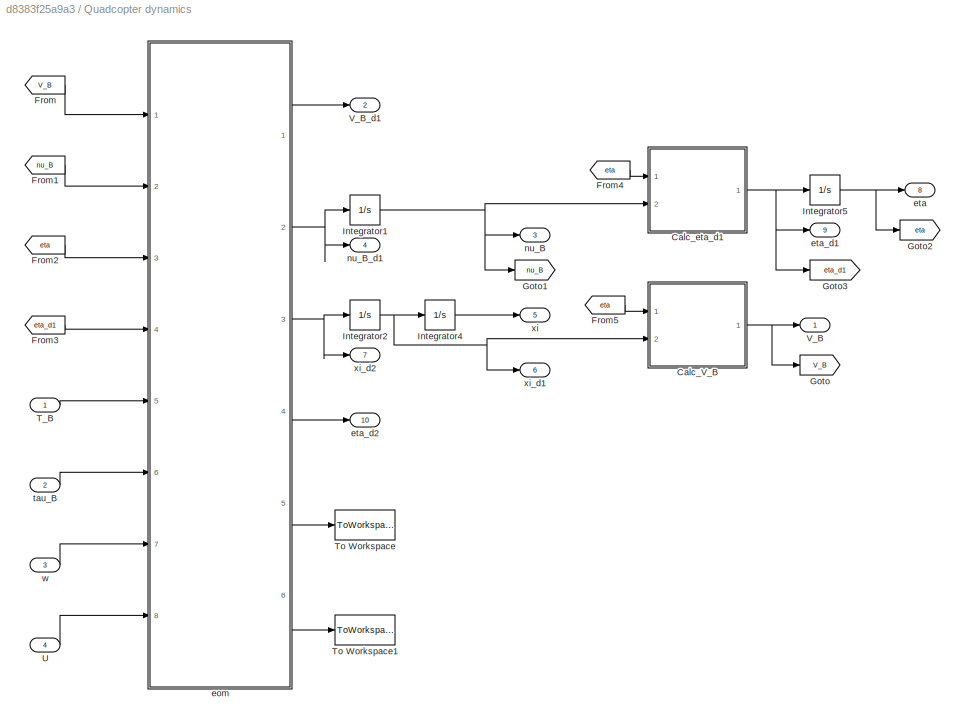
BLOCK [SubSystem] Quadcopter dynamics
  Ports = [4, 10]
  RequestExecContextInheritance = off
BLOCK [SubSystem] Quadcopter dynamics/Calc_V_B
  ErrorFcn = Stateflow.Translate.translate
  PermitHierarchicalResolution = ExplicitOnly
  Ports = [2, 1]
  RequestExecContextInheritance = off
  SFBlockType = MATLAB Function
  TreatAsAtomicUnit = on
BLOCK [Demux] Quadcopter dynamics/Calc_V_B/ Demux 
  Outputs = 1
  Ports = [1, 1]
BLOCK [S-Function] Quadcopter dynamics/Calc_V_B/ SFunction 
  EnableBusSupport = on
  FunctionName = sf_sfun
  PortCounts = [2 2]
  Ports = [2, 2]
  SFcnIsStateOwnerBlock = off
  SFunctionDeploymentMode = off
  Tag = Stateflow S-Function 14
BLOCK [Terminator] Quadcopter dynamics/Calc_V_B/ Terminator 
BLOCK [Outport] Quadcopter dynamics/Calc_V_B/V_B
  VectorParamsAs1DForOutWhenUnconnected = off
BLOCK [Inport] Quadcopter dynamics/Calc_V_B/eta
BLOCK [Inport] Quadcopter dynamics/Calc_V_B/xi_d1
  Port = 2
BLOCK [SubSystem] Quadcopter dynamics/Calc_eta_d1
  ErrorFcn = Stateflow.Translate.translate
  PermitHierarchicalResolution = ExplicitOnly
  Ports = [2, 1]
  RequestExecContextInheritance = off
  SFBlockType = MATLAB Function
  TreatAsAtomicUnit = on
BLOCK [Demux] Quadcopter dynamics/Calc_eta_d1/ Demux 
  Outputs = 1
  Ports = [1, 1]
BLOCK [S-Function] Quadcopter dynamics/Calc_eta_d1/ SFunction 
  EnableBusSupport = on
  FunctionName = sf_sfun
  PortCounts = [2 2]
  Ports = [2, 2]
  SFcnIsStateOwnerBlock = off
  SFunctionDeploymentMode = off
  Tag = Stateflow S-Function 12
BLOCK [Terminator] Quadcopter dynamics/Calc_eta_d1/ Terminator 
BLOCK [Inport] Quadcopter dynamics/Calc_eta_d1/eta
BLOCK [Outport] Quadcopter dynamics/Calc_eta_d1/eta_d1
  VectorParamsAs1DForOutWhenUnconnected = off
BLOCK [Inport] Quadcopter dynamics/Calc_eta_d1/nu_B
  Port = 2
BLOCK [From] Quadcopter dynamics/From
  GotoTag = V_B
BLOCK [From] Quadcopter dynamics/From1
  GotoTag = nu_B
BLOCK [From] Quadcopter dynamics/From2
  GotoTag = eta
BLOCK [From] Quadcopter dynamics/From3
  GotoTag = eta_d1
BLOCK [From] Quadcopter dynamics/From4
  GotoTag = eta
BLOCK [From] Quadcopter dynamics/From5
  GotoTag = eta
BLOCK [Goto] Quadcopter dynamics/Goto
  GotoTag = V_B
BLOCK [Goto] Quadcopter dynamics/Goto1
  GotoTag = nu_B
BLOCK [Goto] Quadcopter dynamics/Goto2
  GotoTag = eta
BLOCK [Goto] Quadcopter dynamics/Goto3
  GotoTag = eta_d1
BLOCK [Integrator] Quadcopter dynamics/Integrator1
  InitialCondition = init_nu_B
  Ports = [1, 1]
BLOCK [Integrator] Quadcopter dynamics/Integrator2
  InitialCondition = init_xi_d1
  Ports = [1, 1]
BLOCK [Integrator] Quadcopter dynamics/Integrator4
  InitialCondition = init_xi
  Ports = [1, 1]
BLOCK [Integrator] Quadcopter dynamics/Integrator5
  InitialCondition = init_eta
  Ports = [1, 1]
  WrapState = on
BLOCK [Inport] Quadcopter dynamics/T_B
BLOCK [ToWorkspace] Quadcopter dynamics/To Workspace
  MaxDataPoints = inf
  Ports = [1]
  SampleTime = -1
  VariableName = F_D
BLOCK [ToWorkspace] Quadcopter dynamics/To Workspace1
  MaxDataPoints = inf
  Ports = [1]
  SampleTime = -1
  VariableName = F_D_i
BLOCK [Inport] Quadcopter dynamics/U
  Port = 4
BLOCK [Outport] Quadcopter dynamics/V_B
  VectorParamsAs1DForOutWhenUnconnected = off
BLOCK [Outport] Quadcopter dynamics/V_B_d1
  Port = 2
  VectorParamsAs1DForOutWhenUnconnected = off
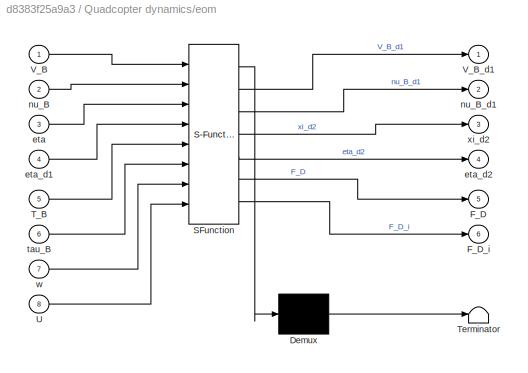
BLOCK [SubSystem] Quadcopter dynamics/eom
  ErrorFcn = Stateflow.Translate.translate
  PermitHierarchicalResolution = ExplicitOnly
  Ports = [8, 6]
  RequestExecContextInheritance = off
  SFBlockType = MATLAB Function
  TreatAsAtomicUnit = on
BLOCK [Demux] Quadcopter dynamics/eom/ Demux 
  Outputs = 1
  Ports = [1, 1]
BLOCK [S-Function] Quadcopter dynamics/eom/ SFunction 
  EnableBusSupport = on
  FunctionName = sf_sfun
  Parameters = Cd,Cdm,G,I,I_R,m,rhoAir
  PortCounts = [8 7]
  Ports = [8, 7]
  SFcnIsStateOwnerBlock = off
  SFunctionDeploymentMode = off
  Tag = Stateflow S-Function 1
BLOCK [Terminator] Quadcopter dynamics/eom/ Terminator 
BLOCK [Outport] Quadcopter dynamics/eom/F_D
  Port = 5
  VectorParamsAs1DForOutWhenUnconnected = off
BLOCK [Outport] Quadcopter dynamics/eom/F_D_i
  Port = 6
  VectorParamsAs1DForOutWhenUnconnected = off
BLOCK [Inport] Quadcopter dynamics/eom/T_B
  Port = 5
BLOCK [Inport] Quadcopter dynamics/eom/U
  Port = 8
BLOCK [Inport] Quadcopter dynamics/eom/V_B
BLOCK [Outport] Quadcopter dynamics/eom/V_B_d1
  VectorParamsAs1DForOutWhenUnconnected = off
BLOCK [Inport] Quadcopter dynamics/eom/eta
  Port = 3
BLOCK [Inport] Quadcopter dynamics/eom/eta_d1
  Port = 4
BLOCK [Outport] Quadcopter dynamics/eom/eta_d2
  Port = 4
  VectorParamsAs1DForOutWhenUnconnected = off
BLOCK [Inport] Quadcopter dynamics/eom/nu_B
  Port = 2
BLOCK [Outport] Quadcopter dynamics/eom/nu_B_d1
  Port = 2
  VectorParamsAs1DForOutWhenUnconnected = off
BLOCK [Inport] Quadcopter dynamics/eom/tau_B
  Port = 6
BLOCK [Inport] Quadcopter dynamics/eom/w
  Port = 7
BLOCK [Outport] Quadcopter dynamics/eom/xi_d2
  Port = 3
  VectorParamsAs1DForOutWhenUnconnected = off
BLOCK [Outport] Quadcopter dynamics/eta
  Port = 8
  VectorParamsAs1DForOutWhenUnconnected = off
BLOCK [Outport] Quadcopter dynamics/eta_d1
  Port = 9
  VectorParamsAs1DForOutWhenUnconnected = off
BLOCK [Outport] Quadcopter dynamics/eta_d2
  Port = 10
  VectorParamsAs1DForOutWhenUnconnected = off
BLOCK [Outport] Quadcopter dynamics/nu_B
  Port = 3
  VectorParamsAs1DForOutWhenUnconnected = off
BLOCK [Outport] Quadcopter dynamics/nu_B_d1
  Port = 4
  VectorParamsAs1DForOutWhenUnconnected = off
BLOCK [Inport] Quadcopter dynamics/tau_B
  Port = 2
BLOCK [Inport] Quadcopter dynamics/w
  Port = 3
BLOCK [Outport] Quadcopter dynamics/xi
  Port = 5
  VectorParamsAs1DForOutWhenUnconnected = off
BLOCK [Outport] Quadcopter dynamics/xi_d1
  Port = 6
  VectorParamsAs1DForOutWhenUnconnected = off
BLOCK [Outport] Quadcopter dynamics/xi_d2
  Port = 7
  VectorParamsAs1DForOutWhenUnconnected = off
BLOCK [Reference] Radians to Degrees  REF=simulink_extras/Transformations/Radians
to Degrees
  Ports = [1, 1]
  SourceBlock = simulink_extras/Transformations/Radians\nto Degrees
  SourceProductBaseCode = SL
  SourceType = RadiansToDegrees
BLOCK [Reference] Radians to Degrees1  REF=simulink_extras/Transformations/Radians
to Degrees
  Ports = [1, 1]
  SourceBlock = simulink_extras/Transformations/Radians\nto Degrees
  SourceProductBaseCode = SL
  SourceType = RadiansToDegrees
BLOCK [Reference] Radians to Degrees2  REF=simulink_extras/Transformations/Radians
to Degrees
  Ports = [1, 1]
  SourceBlock = simulink_extras/Transformations/Radians\nto Degrees
  SourceProductBaseCode = SL
  SourceType = RadiansToDegrees
BLOCK [Reference] Radians to Degrees3  REF=simulink_extras/Transformations/Radians
to Degrees
  Ports = [1, 1]
  SourceBlock = simulink_extras/Transformations/Radians\nto Degrees
  SourceProductBaseCode = SL
  SourceType = RadiansToDegrees
BLOCK [Reference] Radians to Degrees4  REF=simulink_extras/Transformations/Radians
to Degrees
  Ports = [1, 1]
  SourceBlock = simulink_extras/Transformations/Radians\nto Degrees
  SourceProductBaseCode = SL
  SourceType = RadiansToDegrees
BLOCK [Scope] Scope
  Floating = off
  IOType = viewer
  NumInputPorts = 1
  Ports = []
  ScopeSpecificationString = C++SS(StrPVP('Location','[188, 365, 512, 604]'),StrPVP('Open','off'),MxPVP('AxesTitles',54,'struct(''axes1'',''%<SignalLabel>'')'),StrPVP('ShowLegends','off'),StrPVP('ScrollMode','off'),StrPVP('LimitDataPoints','on'),StrPVP('DataFormat','Array'),StrPVP('Decimation','1'),StrPVP('BlockParamSampleInput','off'))  <repeated x49 — deduplicated; at blocks: Scope, Scope1, Scope10, Scope12, Scope13, Scope14, Scope17, Scope18, Scope19, Scope2, Scope20, Scope21, Scope22, Scope23, Scope24, Scope25, +33 more>
BLOCK [Scope] Scope1
  Floating = off
  IOType = viewer
  NumInputPorts = 1
  Ports = []
BLOCK [Scope] Scope10
  Floating = off
  IOType = viewer
  NumInputPorts = 1
  Ports = []
BLOCK [Scope] Scope11
  Floating = off
  IOType = viewer
  NumInputPorts = 1
  Ports = []
  ScopeSpecificationString = Simulink.scopes.TimeScopeBlockCfg('CurrentConfiguration', extmgr.ConfigurationSet(extmgr.Configuration('Core','General UI',true),extmgr.Configuration('Core','Source UI',true),extmgr.Configuration('Sources','WiredSimulink',true,'DataLoggingLimitDataPoints',true,'DataLoggingSaveFormat','Array','DataLoggingDecimation','1','DataLoggingDecimateData',true),extmgr.Configuration('Visuals','Time Domain',tr...<+1809ch>
BLOCK [Scope] Scope12
  Floating = off
  IOType = viewer
  NumInputPorts = 1
  Ports = []
BLOCK [Scope] Scope13
  Floating = off
  IOType = viewer
  NumInputPorts = 1
  Ports = []
BLOCK [Scope] Scope14
  Floating = off
  IOType = viewer
  NumInputPorts = 1
  Ports = []
BLOCK [Scope] Scope15
  Floating = off
  IOType = viewer
  NumInputPorts = 1
  Ports = []
  ScopeSpecificationString = Simulink.scopes.TimeScopeBlockCfg('CurrentConfiguration', extmgr.ConfigurationSet(extmgr.Configuration('Core','General UI',true),extmgr.Configuration('Core','Source UI',true),extmgr.Configuration('Sources','WiredSimulink',true,'DataLoggingLimitDataPoints',true,'DataLoggingSaveFormat','Array','DataLoggingDecimation','1','DataLoggingDecimateData',true),extmgr.Configuration('Visuals','Time Domain',tr...<+1769ch>
BLOCK [Scope] Scope16
  Floating = off
  IOType = viewer
  NumInputPorts = 1
  Ports = []
  ScopeSpecificationString = Simulink.scopes.TimeScopeBlockCfg('CurrentConfiguration', extmgr.ConfigurationSet(extmgr.Configuration('Core','General UI',true),extmgr.Configuration('Core','Source UI',true),extmgr.Configuration('Sources','WiredSimulink',true,'DataLoggingLimitDataPoints',true,'DataLoggingSaveFormat','Array','DataLoggingDecimation','1','DataLoggingDecimateData',true),extmgr.Configuration('Visuals','Time Domain',tr...<+1685ch>
BLOCK [Scope] Scope17
  Floating = off
  IOType = viewer
  NumInputPorts = 1
  Ports = []
BLOCK [Scope] Scope18
  Floating = off
  IOType = viewer
  NumInputPorts = 1
  Ports = []
BLOCK [Scope] Scope19
  Floating = off
  IOType = viewer
  NumInputPorts = 1
  Ports = []
BLOCK [Scope] Scope2
  Floating = off
  IOType = viewer
  NumInputPorts = 1
  Ports = []
BLOCK [Scope] Scope20
  Floating = off
  IOType = viewer
  NumInputPorts = 1
  Ports = []
BLOCK [Scope] Scope21
  Floating = off
  IOType = viewer
  NumInputPorts = 1
  Ports = []
BLOCK [Scope] Scope22
  Floating = off
  IOType = viewer
  NumInputPorts = 1
  Ports = []
BLOCK [Scope] Scope23
  Floating = off
  IOType = viewer
  NumInputPorts = 1
  Ports = []
BLOCK [Scope] Scope24
  Floating = off
  IOType = viewer
  NumInputPorts = 1
  Ports = []
BLOCK [Scope] Scope25
  Floating = off
  IOType = viewer
  NumInputPorts = 1
  Ports = []
BLOCK [Scope] Scope26
  Floating = off
  IOType = viewer
  NumInputPorts = 1
  Ports = []
BLOCK [Scope] Scope27
  Floating = off
  IOType = viewer
  NumInputPorts = 1
  Ports = []
BLOCK [Scope] Scope28
  Floating = off
  IOType = viewer
  NumInputPorts = 1
  Ports = []
BLOCK [Scope] Scope29
  Floating = off
  IOType = viewer
  NumInputPorts = 1
  Ports = []
BLOCK [Scope] Scope3
  Floating = off
  IOType = viewer
  NumInputPorts = 1
  Ports = []
BLOCK [Scope] Scope30
  Floating = off
  IOType = viewer
  NumInputPorts = 1
  Ports = []
  ScopeSpecificationString = Simulink.scopes.TimeScopeBlockCfg('CurrentConfiguration', extmgr.ConfigurationSet(extmgr.Configuration('Core','General UI',true),extmgr.Configuration('Core','Source UI',true),extmgr.Configuration('Sources','WiredSimulink',true,'DataLoggingLimitDataPoints',true,'DataLoggingSaveFormat','Array','DataLoggingDecimation','1','DataLoggingDecimateData',true),extmgr.Configuration('Visuals','Time Domain',tr...<+1652ch>
BLOCK [Scope] Scope31
  Floating = off
  IOType = viewer
  NumInputPorts = 1
  Ports = []
BLOCK [Scope] Scope32
  Floating = off
  IOType = viewer
  NumInputPorts = 1
  Ports = []
  ScopeSpecificationString = Simulink.scopes.TimeScopeBlockCfg('CurrentConfiguration', extmgr.ConfigurationSet(extmgr.Configuration('Core','General UI',true),extmgr.Configuration('Core','Source UI',true),extmgr.Configuration('Sources','WiredSimulink',true,'DataLoggingLimitDataPoints',true,'DataLoggingSaveFormat','Array','DataLoggingDecimation','1','DataLoggingDecimateData',true),extmgr.Configuration('Visuals','Time Domain',tr...<+1687ch>
BLOCK [Scope] Scope33
  Floating = off
  IOType = viewer
  NumInputPorts = 1
  Ports = []
BLOCK [Scope] Scope34
  Floating = off
  IOType = viewer
  NumInputPorts = 1
  Ports = []
BLOCK [Scope] Scope35
  Floating = off
  IOType = viewer
  NumInputPorts = 1
  Ports = []
BLOCK [Scope] Scope36
  Floating = off
  IOType = viewer
  NumInputPorts = 1
  Ports = []
BLOCK [Scope] Scope37
  Floating = off
  IOType = viewer
  NumInputPorts = 1
  Ports = []
BLOCK [Scope] Scope38
  Floating = off
  IOType = viewer
  NumInputPorts = 1
  Ports = []
BLOCK [Scope] Scope39
  Floating = off
  IOType = viewer
  NumInputPorts = 1
  Ports = []
BLOCK [Scope] Scope4
  Floating = off
  IOType = viewer
  NumInputPorts = 1
  Ports = []
BLOCK [Scope] Scope40
  Floating = off
  IOType = viewer
  NumInputPorts = 1
  Ports = []
BLOCK [Scope] Scope41
  Floating = off
  IOType = viewer
  NumInputPorts = 1
  Ports = []
BLOCK [Scope] Scope42
  Floating = off
  IOType = viewer
  NumInputPorts = 1
  Ports = []
BLOCK [Scope] Scope43
  Floating = off
  IOType = viewer
  NumInputPorts = 1
  Ports = []
BLOCK [Scope] Scope44
  Floating = off
  IOType = viewer
  NumInputPorts = 1
  Ports = []
BLOCK [Scope] Scope45
  Floating = off
  IOType = viewer
  NumInputPorts = 1
  Ports = []
BLOCK [Scope] Scope46
  Floating = off
  IOType = viewer
  NumInputPorts = 1
  Ports = []
BLOCK [Scope] Scope47
  Floating = off
  IOType = viewer
  NumInputPorts = 1
  Ports = []
BLOCK [Scope] Scope48
  Floating = off
  IOType = viewer
  NumInputPorts = 1
  Ports = []
BLOCK [Scope] Scope49
  Floating = off
  IOType = viewer
  NumInputPorts = 1
  Ports = []
BLOCK [Scope] Scope5
  Floating = off
  IOType = viewer
  NumInputPorts = 1
  Ports = []
BLOCK [Scope] Scope50
  Floating = off
  IOType = viewer
  NumInputPorts = 1
  Ports = []
BLOCK [Scope] Scope51
  Floating = off
  IOType = viewer
  NumInputPorts = 1
  Ports = []
  ScopeSpecificationString = Simulink.scopes.TimeScopeBlockCfg('CurrentConfiguration', extmgr.ConfigurationSet(extmgr.Configuration('Core','General UI',true),extmgr.Configuration('Core','Source UI',true),extmgr.Configuration('Sources','WiredSimulink',true,'DataLoggingLimitDataPoints',true,'DataLoggingSaveFormat','Array','DataLoggingDecimation','1','DataLoggingDecimateData',true),extmgr.Configuration('Visuals','Time Domain',tr...<+1632ch>
BLOCK [Scope] Scope52
  Floating = off
  IOType = viewer
  NumInputPorts = 1
  Ports = []
  ScopeSpecificationString = Simulink.scopes.TimeScopeBlockCfg('CurrentConfiguration', extmgr.ConfigurationSet(extmgr.Configuration('Core','General UI',true),extmgr.Configuration('Core','Source UI',true),extmgr.Configuration('Sources','WiredSimulink',true,'DataLoggingVariableName','ScopeData2'),extmgr.Configuration('Visuals','Time Domain',true,'SerializedDisplays',{struct('MinYLimReal','0.2','MaxYLimReal','0.4','YLabelReal','...<+1401ch>
BLOCK [Scope] Scope53
  Floating = off
  IOType = viewer
  NumInputPorts = 1
  Ports = []
BLOCK [Scope] Scope54
  Floating = off
  IOType = viewer
  NumInputPorts = 1
  Ports = []
BLOCK [Scope] Scope55
  Floating = off
  IOType = viewer
  NumInputPorts = 1
  Ports = []
BLOCK [Scope] Scope56
  Floating = off
  IOType = viewer
  NumInputPorts = 1
  Ports = []
  ScopeSpecificationString = Simulink.scopes.TimeScopeBlockCfg('CurrentConfiguration', extmgr.ConfigurationSet(extmgr.Configuration('Core','General UI',true),extmgr.Configuration('Core','Source UI',true),extmgr.Configuration('Sources','WiredSimulink',true,'DataLoggingVariableName','ScopeData1'),extmgr.Configuration('Visuals','Time Domain',true,'SerializedDisplays',{struct('MinYLimReal','212.72977','MaxYLimReal','949.77023','Y...<+1451ch>
BLOCK [Scope] Scope57
  Floating = off
  IOType = viewer
  NumInputPorts = 1
  Ports = []
  ScopeSpecificationString = Simulink.scopes.TimeScopeBlockCfg('CurrentConfiguration', extmgr.ConfigurationSet(extmgr.Configuration('Core','General UI',true),extmgr.Configuration('Core','Source UI',true),extmgr.Configuration('Sources','WiredSimulink',true,'DataLoggingVariableName','ScopeData2'),extmgr.Configuration('Visuals','Time Domain',true,'SerializedDisplays',{struct('MinYLimReal','1264.53186','MaxYLimReal','1922.534','Y...<+1646ch>
BLOCK [Scope] Scope58
  Floating = off
  IOType = viewer
  NumInputPorts = 1
  Ports = []
  ScopeSpecificationString = Simulink.scopes.TimeScopeBlockCfg('CurrentConfiguration', extmgr.ConfigurationSet(extmgr.Configuration('Core','General UI',true),extmgr.Configuration('Core','Source UI',true),extmgr.Configuration('Sources','WiredSimulink',true,'DataLoggingVariableName','ScopeData3'),extmgr.Configuration('Visuals','Time Domain',true,'SerializedDisplays',{struct('MinYLimReal','-1.00000','MaxYLimReal','1.00000','YLab...<+1456ch>
BLOCK [Scope] Scope59
  Floating = off
  IOType = viewer
  NumInputPorts = 1
  Ports = []
  ScopeSpecificationString = Simulink.scopes.TimeScopeBlockCfg('CurrentConfiguration', extmgr.ConfigurationSet(extmgr.Configuration('Core','General UI',true),extmgr.Configuration('Core','Source UI',true),extmgr.Configuration('Sources','WiredSimulink',true,'DataLoggingVariableName','ScopeData4'),extmgr.Configuration('Visuals','Time Domain',true,'SerializedDisplays',{struct('MinYLimReal','350.00000','MaxYLimReal','2350.00000','...<+1406ch>
BLOCK [Scope] Scope6
  Floating = off
  IOType = viewer
  NumInputPorts = 1
  Ports = []
BLOCK [Scope] Scope60
  Floating = off
  IOType = viewer
  NumInputPorts = 1
  Ports = []
  ScopeSpecificationString = Simulink.scopes.TimeScopeBlockCfg('CurrentConfiguration', extmgr.ConfigurationSet(extmgr.Configuration('Core','General UI',true),extmgr.Configuration('Core','Source UI',true),extmgr.Configuration('Sources','WiredSimulink',true,'DataLoggingVariableName','ScopeData5'),extmgr.Configuration('Visuals','Time Domain',true,'SerializedDisplays',{struct('MinYLimReal','314.01096','MaxYLimReal','2314.01096','...<+1377ch>
BLOCK [Scope] Scope7
  Floating = off
  IOType = viewer
  NumInputPorts = 1
  Ports = []
BLOCK [Scope] Scope8
  Floating = off
  IOType = viewer
  NumInputPorts = 1
  Ports = []
BLOCK [Scope] Scope9
  Floating = off
  IOType = viewer
  NumInputPorts = 1
  Ports = []
BLOCK [Scope] Translational position, velocity, & acceleration (inertial)
  Floating = off
  NumInputPorts = 3
  Ports = [3]
  ScopeSpecificationString = Simulink.scopes.TimeScopeBlockCfg('CurrentConfiguration', extmgr.ConfigurationSet(extmgr.Configuration('Core','General UI',true),extmgr.Configuration('Core','Source UI',true),extmgr.Configuration('Sources','WiredSimulink',true,'DataLoggingSaveFormat','Array','DataLoggingDecimation','1','DataLoggingDecimateData',true,'DataLoggingVariableName','ScopeData2'),extmgr.Configuration('Visuals','Time Domai...<+3026ch>
BLOCK [Scope] Translational velocity & acceleration (body)
  Floating = off
  NumInputPorts = 2
  Ports = [2]
  ScopeSpecificationString = Simulink.scopes.TimeScopeBlockCfg('CurrentConfiguration', extmgr.ConfigurationSet(extmgr.Configuration('Core','General UI',true),extmgr.Configuration('Core','Source UI',true),extmgr.Configuration('Sources','WiredSimulink',true,'DataLoggingSaveFormat','Array','DataLoggingDecimation','1','DataLoggingDecimateData',true),extmgr.Configuration('Visuals','Time Domain',true,'SerializedDisplays',{struct('M...<+2198ch>
BLOCK [Scope] Wind
  Floating = off
  NumInputPorts = 1
  Ports = [1]
  ScopeSpecificationString = Simulink.scopes.TimeScopeBlockCfg('CurrentConfiguration', extmgr.ConfigurationSet(extmgr.Configuration('Core','General UI',true),extmgr.Configuration('Core','Source UI',true),extmgr.Configuration('Sources','WiredSimulink',true,'DataLoggingSaveFormat','Array','DataLoggingDecimation','1','DataLoggingDecimateData',true,'DataLoggingVariableName','ScopeData1'),extmgr.Configuration('Visuals','Time Domai...<+1696ch>
BLOCK [ToWorkspace] body_rot_vel_acc
  MaxDataPoints = inf
  Ports = [1]
  SampleTime = -1
  VariableName = x_v_B
BLOCK [ToWorkspace] body_trn_vel_acc
  MaxDataPoints = inf
  Ports = [1]
  SampleTime = -1
  VariableName = x_V_B
BLOCK [ToWorkspace] iner_rot_x
  MaxDataPoints = inf
  Ports = [1]
  SampleTime = -1
  VariableName = x_eta
BLOCK [ToWorkspace] iner_rot_x1
  MaxDataPoints = inf
  Ports = [1]
  SampleTime = -1
  VariableName = w
BLOCK [ToWorkspace] iner_rot_x2
  MaxDataPoints = inf
  Ports = [1]
  SampleTime = -1
  VariableName = T_B
BLOCK [ToWorkspace] iner_rot_x3
  MaxDataPoints = inf
  Ports = [1]
  SampleTime = -1
  VariableName = tau_B
BLOCK [ToWorkspace] iner_rot_x6
  MaxDataPoints = inf
  Ports = [1]
  SampleTime = -1
  VariableName = simWindData
BLOCK [ToWorkspace] iner_trn_x
  MaxDataPoints = inf
  Ports = [1]
  SampleTime = -1
  VariableName = x_xi
ANNOTATION (root): << Note: those blocks are 'GoTo' blocks which are useful << to clean-up your code and avoid big messes of << signals.
ANNOTATION (root): Quadcopter Simulation Model Written by: J.Bannwarth, J.Chen, and K.Stol (last modified 28/04/2016 by KS) For quick questions, contact Karl or <email>
ANNOTATION (root): Logging
ANNOTATION (root): Output
ANNOTATION (root): Wind Disturbance
LINE Demux10:1 -> Mux11:1
LINE Demux10:2 -> Mux11:2
LINE Demux10:3 -> Mux11:3
LINE Demux11:1 -> Mux14:1
LINE Demux11:2 -> Mux14:2
LINE Demux11:3 -> Mux14:3
LINE Demux12:1 -> Mux15:1
LINE Demux12:2 -> Mux15:2
LINE Demux12:3 -> Mux15:3
LINE Demux13:1 -> Motor PWM outputs:1
LINE Demux13:2 -> Motor PWM outputs:2
LINE Demux13:3 -> Motor PWM outputs:3
LINE Demux13:4 -> Motor PWM outputs:4
LINE Demux1:1 -> Mux4:1
LINE Demux1:2 -> Mux4:2
LINE Demux1:3 -> Mux4:3
LINE Demux2:1 -> Mux6:1
LINE Demux2:2 -> Mux6:2
LINE Demux2:3 -> Mux6:3
LINE Demux3:1 -> Mux7:1
LINE Demux3:2 -> Mux7:2
LINE Demux3:3 -> Mux7:3
LINE Demux4:1 -> Mux5:1
LINE Demux4:2 -> Mux5:2
LINE Demux4:3 -> Mux5:3
LINE Demux5:1 -> Mux8:1
LINE Demux5:2 -> Mux8:2
LINE Demux5:3 -> Mux8:3
LINE Demux6:1 -> Mux9:1
LINE Demux6:2 -> Mux9:2
LINE Demux6:3 -> Mux9:3
LINE Demux7:1 -> Mux10:1
LINE Demux7:2 -> Mux10:2
LINE Demux7:3 -> Mux10:3
LINE Demux8:1 -> Mux12:1
LINE Demux8:2 -> Mux12:2
LINE Demux8:3 -> Mux12:3
LINE Demux9:1 -> Mux13:1
LINE Demux9:2 -> Mux13:2
LINE Demux9:3 -> Mux13:3
LINE From Workspace1:1 -> Logging buffer:1
LINE From Workspace:1 -> Gain:1
LINE From10:1 -> Demux1:1
LINE From11:1 -> Demux4:1
LINE From12:1 -> Radians to Degrees3:1
LINE From13:1 -> Radians to Degrees4:1
LINE From14:1 -> Demux7:1
LINE From15:1 -> Demux5:1
LINE From16:1 -> Demux6:1
LINE From17:1 -> Radians to Degrees:1
LINE From18:1 -> Radians to Degrees1:1
LINE From19:1 -> Radians to Degrees2:1
LINE From1:1 -> Mux:2
LINE From27:1 -> Demux13:1
LINE From29:1 -> iner_rot_x1:1
LINE From2:1 -> Mux1:1
LINE From30:1 -> iner_rot_x2:1
LINE From31:1 -> iner_rot_x3:1
LINE From32:1 -> Demux12:1
LINE From33:1 -> Demux11:1
LINE From3:1 -> Mux1:2
LINE From4:1 -> Mux2:1
LINE From5:1 -> Mux2:2
LINE From6:1 -> Mux2:3
LINE From7:1 -> Mux3:1
LINE From8:1 -> Mux3:2
LINE From9:1 -> Mux3:3
LINE From:1 -> Mux:1
NET Gain:1 -> Quadcopter dynamics:4, Wind:1, iner_rot_x6:1
LINE Logging buffer/pwmIn:1 -> Logging buffer/pwmOut:1
NET Logging buffer:1 -> Goto11:1, Motor Dynamics:1
NET Motor Dynamics/Integrator:1 -> Motor Dynamics/MATLAB Function1:2, Motor Dynamics/MATLAB Function:1, Motor Dynamics/w:1
NET Motor Dynamics/MATLAB Function1:1 -> Motor Dynamics/Integrator:1, Motor Dynamics/MATLAB Function:2
LINE Motor Dynamics/MATLAB Function:1 -> Motor Dynamics/T_B:1
LINE Motor Dynamics/MATLAB Function:2 -> Motor Dynamics/tau_B:1
LINE Motor Dynamics/pwm:1 -> Motor Dynamics/MATLAB Function1:1
NET Motor Dynamics:1 -> Goto12:1, Quadcopter dynamics:1
NET Motor Dynamics:2 -> Goto13:1, Quadcopter dynamics:2
NET Motor Dynamics:3 -> Goto10:1, Quadcopter dynamics:3
LINE Mux10:1 -> Translational position, velocity, & acceleration (inertial):1
LINE Mux11:1 -> Angular position, velocity, & acceleration (inertial):1
LINE Mux12:1 -> Angular position, velocity, & acceleration (inertial):2
LINE Mux13:1 -> Angular position, velocity, & acceleration (inertial):3
LINE Mux14:1 -> Motor thrust and resulting torque:2
LINE Mux15:1 -> Motor thrust and resulting torque:1
LINE Mux1:1 -> body_rot_vel_acc:1
LINE Mux2:1 -> iner_trn_x:1
LINE Mux3:1 -> iner_rot_x:1
LINE Mux4:1 -> Translational velocity & acceleration (body):1
LINE Mux5:1 -> Translational velocity & acceleration (body):2
LINE Mux6:1 -> Angular velocity & acceleration (body):1
LINE Mux7:1 -> Angular velocity & acceleration (body):2
LINE Mux8:1 -> Translational position, velocity, & acceleration (inertial):2
LINE Mux9:1 -> Translational position, velocity, & acceleration (inertial):3
LINE Mux:1 -> body_trn_vel_acc:1
NET Quadcopter dynamics/Calc_V_B:1 -> Quadcopter dynamics/Goto:1, Quadcopter dynamics/V_B:1
NET Quadcopter dynamics/Calc_eta_d1:1 -> Quadcopter dynamics/Goto3:1, Quadcopter dynamics/Integrator5:1, Quadcopter dynamics/eta_d1:1
LINE Quadcopter dynamics/From1:1 -> Quadcopter dynamics/eom:2
LINE Quadcopter dynamics/From2:1 -> Quadcopter dynamics/eom:3
LINE Quadcopter dynamics/From3:1 -> Quadcopter dynamics/eom:4
LINE Quadcopter dynamics/From4:1 -> Quadcopter dynamics/Calc_eta_d1:1
LINE Quadcopter dynamics/From5:1 -> Quadcopter dynamics/Calc_V_B:1
LINE Quadcopter dynamics/From:1 -> Quadcopter dynamics/eom:1
NET Quadcopter dynamics/Integrator1:1 -> Quadcopter dynamics/Calc_eta_d1:2, Quadcopter dynamics/Goto1:1, Quadcopter dynamics/nu_B:1
NET Quadcopter dynamics/Integrator2:1 -> Quadcopter dynamics/Calc_V_B:2, Quadcopter dynamics/Integrator4:1, Quadcopter dynamics/xi_d1:1
LINE Quadcopter dynamics/Integrator4:1 -> Quadcopter dynamics/xi:1
NET Quadcopter dynamics/Integrator5:1 -> Quadcopter dynamics/Goto2:1, Quadcopter dynamics/eta:1
LINE Quadcopter dynamics/T_B:1 -> Quadcopter dynamics/eom:5
LINE Quadcopter dynamics/U:1 -> Quadcopter dynamics/eom:8
LINE Quadcopter dynamics/eom:1 -> Quadcopter dynamics/V_B_d1:1
NET Quadcopter dynamics/eom:2 -> Quadcopter dynamics/Integrator1:1, Quadcopter dynamics/nu_B_d1:1
NET Quadcopter dynamics/eom:3 -> Quadcopter dynamics/Integrator2:1, Quadcopter dynamics/xi_d2:1
LINE Quadcopter dynamics/eom:4 -> Quadcopter dynamics/eta_d2:1
LINE Quadcopter dynamics/eom:5 -> Quadcopter dynamics/To Workspace:1
LINE Quadcopter dynamics/eom:6 -> Quadcopter dynamics/To Workspace1:1
LINE Quadcopter dynamics/tau_B:1 -> Quadcopter dynamics/eom:6
LINE Quadcopter dynamics/w:1 -> Quadcopter dynamics/eom:7
LINE Quadcopter dynamics:1 -> Goto:1
LINE Quadcopter dynamics:10 -> Goto9:1
LINE Quadcopter dynamics:2 -> Goto1:1
LINE Quadcopter dynamics:3 -> Goto2:1
LINE Quadcopter dynamics:4 -> Goto3:1
LINE Quadcopter dynamics:5 -> Goto4:1
LINE Quadcopter dynamics:6 -> Goto5:1
LINE Quadcopter dynamics:7 -> Goto6:1
LINE Quadcopter dynamics:8 -> Goto7:1
LINE Quadcopter dynamics:9 -> Goto8:1
LINE Radians to Degrees1:1 -> Demux8:1
LINE Radians to Degrees2:1 -> Demux9:1
LINE Radians to Degrees3:1 -> Demux2:1
LINE Radians to Degrees4:1 -> Demux3:1
LINE Radians to Degrees:1 -> Demux10:1
note: NET lines group one-source signal fan-out (src -> all destinations, sorted); 1:1 wires keep LINE
CHART Quadcopter dynamics/eom states=1 transitions=1
  STATE_LABEL 'eML_blk_kernel()'
  STATE_LABEL 'SCRIPT:\nfunction [V_B_d1,nu_B_d1,xi_d2,eta_d2,F_D,F_D_i] = fcn(V_B,nu_B,eta,eta_d1,T_B,tau_B,w,U, m,I,I_R,Cd,Cdm,rhoAir,G)\n%#codegen\n\n% Rotation matrices\nSphi = sin(eta(1));\nStheta = sin(eta(2));\nSpsi = sin(eta(3));\nCphi = cos(eta(1));\nCtheta = cos(eta(2));\nCpsi = cos(eta(3));\nTtheta = tan(eta(2));\nphi_d = eta_d1(1);\ntheta_d = eta_d1(2);\n\nR = [Cpsi*Ctheta,   Cpsi*Stheta*Sphi-Spsi*Cphi, Cpsi*Stheta...<+1601ch>'
CHART Quadcopter dynamics/Calc_eta_d1 states=1 transitions=1
  STATE_LABEL 'eML_blk_kernel()'
  STATE_LABEL 'SCRIPT:\nfunction eta_d1 = fcn(eta,nu_B)\n%#codegen\n\nSphi = sin(eta(1));\nCphi = cos(eta(1));\nCtheta = cos(eta(2));\nTtheta = tan(eta(2));\n      \nWInv = [1, Sphi*Ttheta,    Cphi*Ttheta;\n         0, Cphi,           -Sphi;\n         0, Sphi/Ctheta,    Cphi/Ctheta];\n     \neta_d1 = WInv*nu_B;'
CHART Quadcopter dynamics/Calc_V_B states=1 transitions=1
  STATE_LABEL 'eML_blk_kernel()'
  STATE_LABEL 'SCRIPT:\nfunction V_B = fcn(eta,xi_d1)\n%#codegen\n\nSphi = sin(eta(1));\nStheta = sin(eta(2));\nSpsi = sin(eta(3));\nCphi = cos(eta(1));\nCtheta = cos(eta(2));\nCpsi = cos(eta(3));\n\nR = [Cpsi*Ctheta,   Cpsi*Stheta*Sphi-Spsi*Cphi, Cpsi*Stheta*Cphi+Spsi*Sphi;\n\tSpsi*Ctheta,    Spsi*Stheta*Sphi+Cpsi*Cphi, Spsi*Stheta*Cphi-Cpsi*Sphi;\n\t-Stheta,        Ctheta*Sphi,                Ctheta*Cphi+Spsi*Sphi];     % ro...<+64ch>'
CHART Motor Dynamics/MATLAB Function states=1 transitions=1
  STATE_LABEL 'eML_blk_kernel()'
  STATE_LABEL "SCRIPT:\nfunction [T_B,tau_B] = motor_force_torque(w,w_d, k,b,l,beta,I_R)\n%#codegen\n\n% Motor force/torque vectors in motor frame\nind_Mi = (-1).^((1:1:4));\nT_Mi = [zeros(2,4); k*(w'.^2)];\ntau_Mi = [zeros(2,4); (b*(w'.^2)+I_R(3,3)*w_d').*ind_Mi];\n\n% Initialise matrices to store motor force/torque vectors\nT_Bi = zeros(3,4);\ntau_Bi = zeros(3,4);\n\n% Calculate forces and moments from each motor in the bo...<+470ch>"
CHART Motor Dynamics/MATLAB Function1 states=1 transitions=1
  STATE_LABEL 'eML_blk_kernel()'
  STATE_LABEL 'SCRIPT:\nfunction w_d = fcn(throttle_pwm,w, batt_volt_nom,K_T,K_e,R,I_R,b)\n%#codegen\n\nv = throttle_pwm*batt_volt_nom/1000;    % applied motor voltages\ncurrent = (v - K_e*w)/R;      % motor current, ignoring inductance\n\nnet_torque = K_T*current - b*w.^2;\n\nw_d = net_torque/I_R(3,3);  % motor angular acceleration'
CHART  states=0 transitions=0
CHART  states=0 transitions=0
CHART  states=0 transitions=0
CHART  states=0 transitions=0
CHART  states=0 transitions=0
